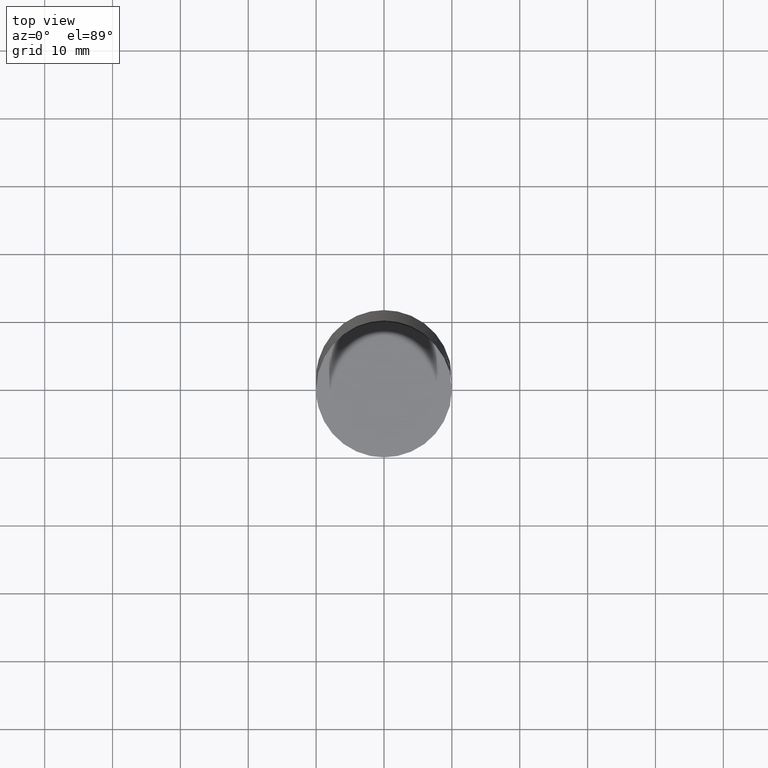
[diagram: clean part render]
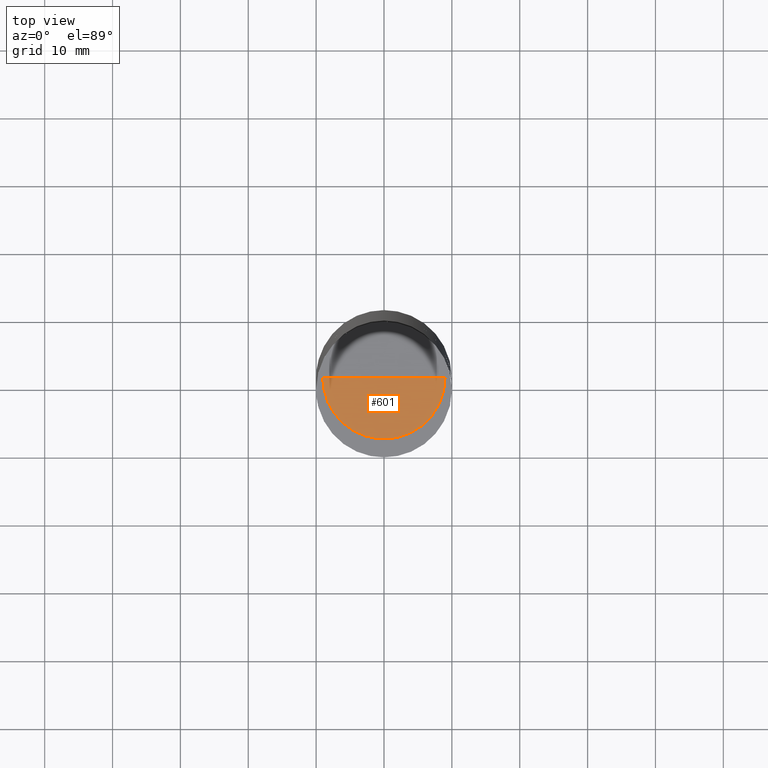
[diagram: same view with one face highlighted and labeled with its STEP entity id]
A machine part, top view. The second image highlights one B-rep face of the part: STEP entity #601.
In plain terms, the highlighted face is a freeform B-spline surface patch.
Its self-contained STEP definition (entity closure, byte-faithful):
#288=CARTESIAN_POINT('',(9.0,0.0,50.0));
#292=CARTESIAN_POINT('',(-9.0,0.0,50.0));
#293=CARTESIAN_POINT('',(0.0,0.0,50.0));
#300=CARTESIAN_POINT('',(-9.0,-9.0,50.0));
#301=CARTESIAN_POINT('',(0.0,-9.0,50.0));
#302=CARTESIAN_POINT('',(9.0,-9.0,50.0));
#586=(
BOUNDED_SURFACE()
B_SPLINE_SURFACE(1,2,(
(#292,#300,#301,#302,#288),
(#293,#293,#293,#293,#293)
), .UNSPECIFIED.,.F.,.F.,.F.)
B_SPLINE_SURFACE_WITH_KNOTS((2,2),(3,2,3),(
0.0,1.0),(
0.0,0.5,1.0), .UNSPECIFIED.)
GEOMETRIC_REPRESENTATION_ITEM()
RATIONAL_B_SPLINE_SURFACE(((1.0,0.707106781187,1.0,0.707106781187,1.0),
(1.0,0.707106781187,1.0,0.707106781187,1.0)
))
REPRESENTATION_ITEM('')
SURFACE()
);
#587=(
BOUNDED_CURVE()
B_SPLINE_CURVE(1,(#293,#288),.UNSPECIFIED.,.F.,.F.)
B_SPLINE_CURVE_WITH_KNOTS((2,2),
(0.0,1.0),.UNSPECIFIED.)
CURVE()
GEOMETRIC_REPRESENTATION_ITEM()
RATIONAL_B_SPLINE_CURVE((1.0,1.0))
REPRESENTATION_ITEM('')
);
#588=(
BOUNDED_CURVE()
B_SPLINE_CURVE(2,(#288,#302,#301,#300,#292),.UNSPECIFIED.,.F.,.F.)
B_SPLINE_CURVE_WITH_KNOTS((3,2,3),
(0.0,0.5,1.0),.UNSPECIFIED.)
CURVE()
GEOMETRIC_REPRESENTATION_ITEM()
RATIONAL_B_SPLINE_CURVE((1.0,0.707106781187,1.0,0.707106781187,1.0))
REPRESENTATION_ITEM('')
);
#589=(
BOUNDED_CURVE()
B_SPLINE_CURVE(1,(#292,#293),.UNSPECIFIED.,.F.,.F.)
B_SPLINE_CURVE_WITH_KNOTS((2,2),
(0.0,1.0),.UNSPECIFIED.)
CURVE()
GEOMETRIC_REPRESENTATION_ITEM()
RATIONAL_B_SPLINE_CURVE((1.0,1.0))
REPRESENTATION_ITEM('')
);
#590=VERTEX_POINT('',#288);
#591=VERTEX_POINT('',#292);
#592=VERTEX_POINT('',#293);
#593=EDGE_CURVE('',#592,#590,#587,.T.);
#594=EDGE_CURVE('',#590,#591,#588,.T.);
#595=EDGE_CURVE('',#591,#592,#589,.T.);
#596=ORIENTED_EDGE('',*,*,#593,.T.);
#597=ORIENTED_EDGE('',*,*,#594,.T.);
#598=ORIENTED_EDGE('',*,*,#595,.T.);
#599=EDGE_LOOP('',(#596,#597,#598));
#600=FACE_OUTER_BOUND('',#599,.T.);
#601=ADVANCED_FACE('',(#600),#586,.T.);